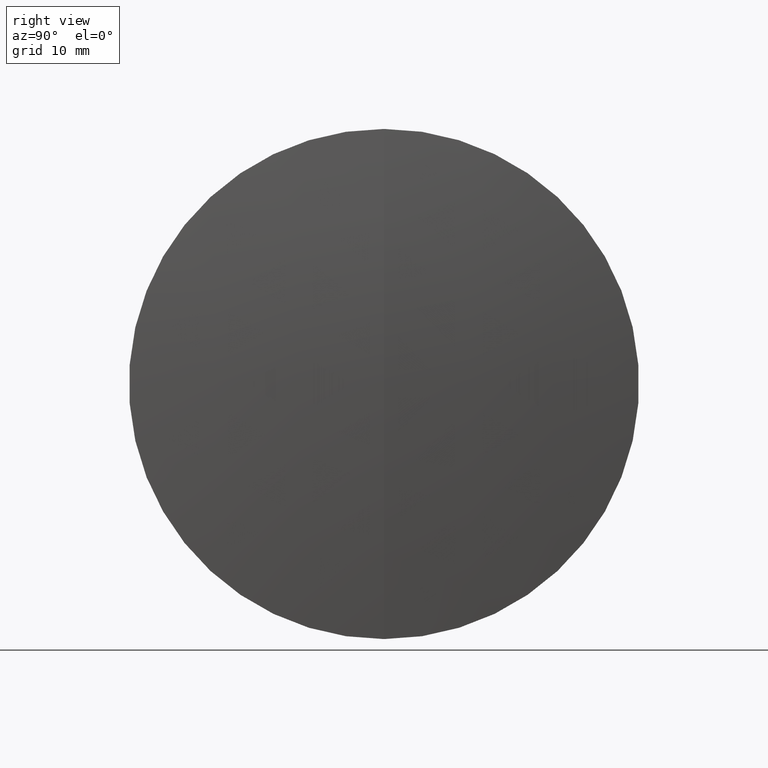
[diagram: clean part render]
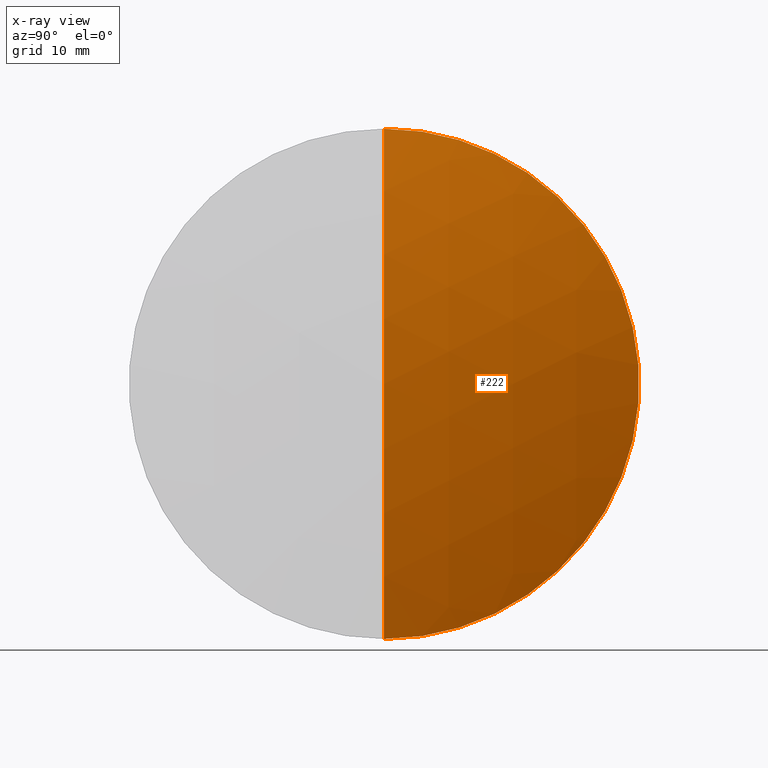
[diagram: x-ray — body ghosted, one internal face saturated and labeled with its STEP entity id]
A machine part, right view, then the same camera in x-ray: the body is ghosted and one INTERNAL B-rep face — a face not visible from any outside direction — is saturated and labeled: STEP entity #222.
In plain terms, the highlighted spherical surface has radius 75.668 mm.
Its self-contained STEP definition (entity closure, byte-faithful):
#4 = DIRECTION ( 'NONE',  ( 0.0000000000000000000, 0.0000000000000000000, 1.000000000000000000 ) ) ;
#5 = FACE_OUTER_BOUND ( 'NONE', #29, .T. ) ;
#6 = DIRECTION ( 'NONE',  ( 0.0000000000000000000, -1.000000000000000000, 0.0000000000000000000 ) ) ;
#13 = DIRECTION ( 'NONE',  ( 0.0000000000000000000, 0.0000000000000000000, -1.000000000000000000 ) ) ;
#29 = EDGE_LOOP ( 'NONE', ( #159, #244, #322 ) ) ;
#31 = EDGE_CURVE ( 'NONE', #327, #144, #329, .T. ) ;
#35 = AXIS2_PLACEMENT_3D ( 'NONE', #92, #93, #95 ) ;
#50 = DIRECTION ( 'NONE',  ( -1.000000000000000000, -0.0000000000000000000, -0.0000000000000000000 ) ) ;
#66 = AXIS2_PLACEMENT_3D ( 'NONE', #180, #6, #13 ) ;
#77 = DIRECTION ( 'NONE',  ( 0.0000000000000000000, 1.000000000000000000, 0.0000000000000000000 ) ) ;
#81 = CARTESIAN_POINT ( 'NONE',  ( 161.3467151953938700, 0.0000000000000000000, 7.400657500588618300E-015 ) ) ;
#92 = CARTESIAN_POINT ( 'NONE',  ( 161.3467151953938700, 0.0000000000000000000, 7.400657500588618300E-015 ) ) ;
#93 = DIRECTION ( 'NONE',  ( -0.0000000000000000000, 1.000000000000000000, 1.224646799147353200E-016 ) ) ;
#95 = DIRECTION ( 'NONE',  ( 0.0000000000000000000, -1.224646799147353500E-016, 1.000000000000000000 ) ) ;
#97 = DIRECTION ( 'NONE',  ( 0.0000000000000000000, 0.0000000000000000000, 1.000000000000000000 ) ) ;
#133 = SPHERICAL_SURFACE ( 'NONE', #203, 75.66800000000002100 ) ;
#144 = VERTEX_POINT ( 'NONE', #234 ) ;
#153 = CARTESIAN_POINT ( 'NONE',  ( 232.7655238104919400, 3.061616997868379500E-015, -24.99999999999997200 ) ) ;
#159 = ORIENTED_EDGE ( 'NONE', *, *, #31, .F. ) ;
#169 = CARTESIAN_POINT ( 'NONE',  ( 237.0147151953939000, 0.0000000000000000000, 1.203398620048271500E-014 ) ) ;
#180 = CARTESIAN_POINT ( 'NONE',  ( 161.3467151953938700, 0.0000000000000000000, 7.400657500588618300E-015 ) ) ;
#203 = AXIS2_PLACEMENT_3D ( 'NONE', #81, #77, #97 ) ;
#210 = CIRCLE ( 'NONE', #35, 75.66800000000002100 ) ;
#215 = EDGE_CURVE ( 'NONE', #327, #308, #210, .T. ) ;
#222 = ADVANCED_FACE ( 'NONE', ( #5 ), #133, .T. ) ;
#229 = CARTESIAN_POINT ( 'NONE',  ( 232.7655238104919400, 0.0000000000000000000, 0.0000000000000000000 ) ) ;
#234 = CARTESIAN_POINT ( 'NONE',  ( 232.7655238104919400, 0.0000000000000000000, 24.99999999999997200 ) ) ;
#244 = ORIENTED_EDGE ( 'NONE', *, *, #215, .T. ) ;
#308 = VERTEX_POINT ( 'NONE', #153 ) ;
#312 = CIRCLE ( 'NONE', #313, 24.99999999999997200 ) ;
#313 = AXIS2_PLACEMENT_3D ( 'NONE', #229, #50, #4 ) ;
#319 = EDGE_CURVE ( 'NONE', #144, #308, #312, .T. ) ;
#322 = ORIENTED_EDGE ( 'NONE', *, *, #319, .F. ) ;
#327 = VERTEX_POINT ( 'NONE', #169 ) ;
#329 = CIRCLE ( 'NONE', #66, 75.66800000000002100 ) ;